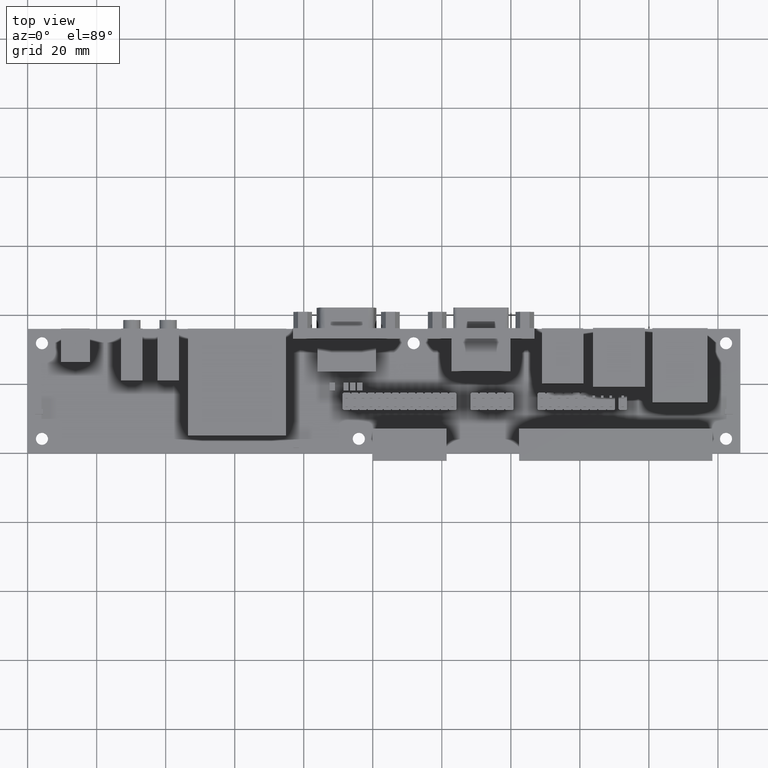
[diagram: clean part render]
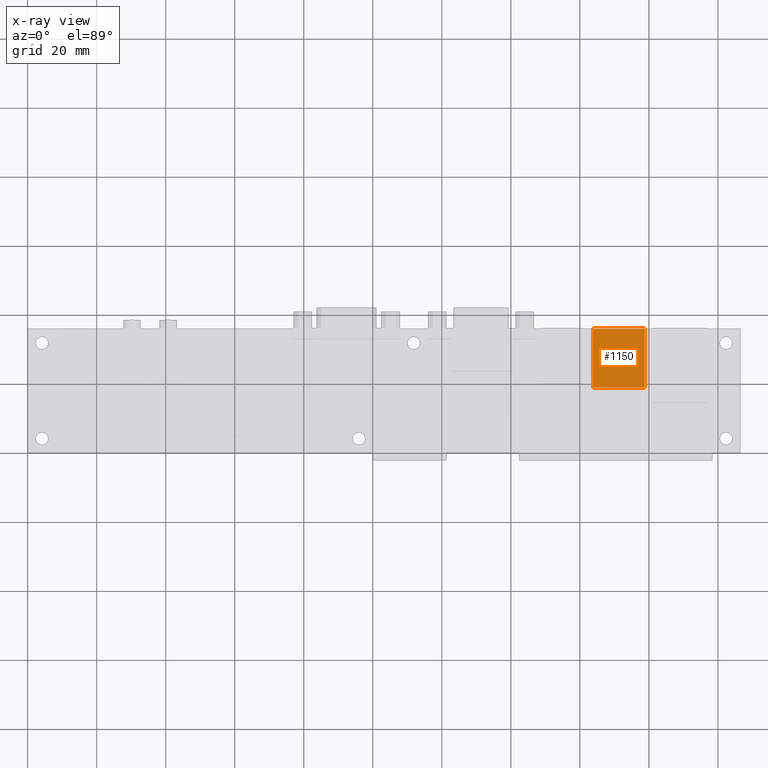
[diagram: x-ray — body ghosted, one internal face saturated and labeled with its STEP entity id]
A machine part, top view, then the same camera in x-ray: the body is ghosted and one INTERNAL B-rep face — a face not visible from any outside direction — is saturated and labeled: STEP entity #1150.
In plain terms, the highlighted planar face has unit normal (0, 0, -1).
Its self-contained STEP definition (entity closure, byte-faithful):
#1150=ADVANCED_FACE($,(#2030),#10794,.T.);
#2030=FACE_OUTER_BOUND($,#2927,.T.);
#2927=EDGE_LOOP($,(#6384,#6385,#6386,#6387));
#6384=ORIENTED_EDGE($,*,*,#8588,.T.);
#6385=ORIENTED_EDGE($,*,*,#8584,.T.);
#6386=ORIENTED_EDGE($,*,*,#8589,.F.);
#6387=ORIENTED_EDGE($,*,*,#8580,.F.);
#8580=EDGE_CURVE($,#9957,#9958,#12576,.T.);
#8584=EDGE_CURVE($,#9961,#9962,#12580,.T.);
#8588=EDGE_CURVE($,#9957,#9961,#12584,.T.);
#8589=EDGE_CURVE($,#9958,#9962,#12585,.T.);
#9957=VERTEX_POINT($,#21381);
#9958=VERTEX_POINT($,#21382);
#9961=VERTEX_POINT($,#21385);
#9962=VERTEX_POINT($,#21386);
#10794=PLANE($,#13538);
#12576=B_SPLINE_CURVE_WITH_KNOTS($,1,(#21278,#21279),.UNSPECIFIED.,.F.,.F.,
(2,2),(0.,15.),.UNSPECIFIED.);
#12580=B_SPLINE_CURVE_WITH_KNOTS($,1,(#21286,#21287),.UNSPECIFIED.,.F.,.F.,
(2,2),(0.,15.),.UNSPECIFIED.);
#12584=B_SPLINE_CURVE_WITH_KNOTS($,1,(#21294,#21295),.UNSPECIFIED.,.F.,.F.,
(2,2),(0.,17.),.UNSPECIFIED.);
#12585=B_SPLINE_CURVE_WITH_KNOTS($,1,(#21296,#21297),.UNSPECIFIED.,.F.,.F.,
(2,2),(0.,17.),.UNSPECIFIED.);
#13538=AXIS2_PLACEMENT_3D($,#21365,#14266,$);
#14266=DIRECTION($,(0.,0.,-1.));
#21278=CARTESIAN_POINT($,(163.799180513453,19.,1.7));
#21279=CARTESIAN_POINT($,(178.799180513453,19.,1.7));
#21286=CARTESIAN_POINT($,(163.799180513453,36.,1.7));
#21287=CARTESIAN_POINT($,(178.799180513453,36.,1.7));
#21294=CARTESIAN_POINT($,(163.799180513453,19.,1.7));
#21295=CARTESIAN_POINT($,(163.799180513453,36.,1.7));
#21296=CARTESIAN_POINT($,(178.799180513453,19.,1.7));
#21297=CARTESIAN_POINT($,(178.799180513453,36.,1.7));
#21365=CARTESIAN_POINT($,(163.799180513453,19.,1.7));
#21381=CARTESIAN_POINT($,(163.799180513453,19.,1.7));
#21382=CARTESIAN_POINT($,(178.799180513453,19.,1.7));
#21385=CARTESIAN_POINT($,(163.799180513453,36.,1.7));
#21386=CARTESIAN_POINT($,(178.799180513453,36.,1.7));